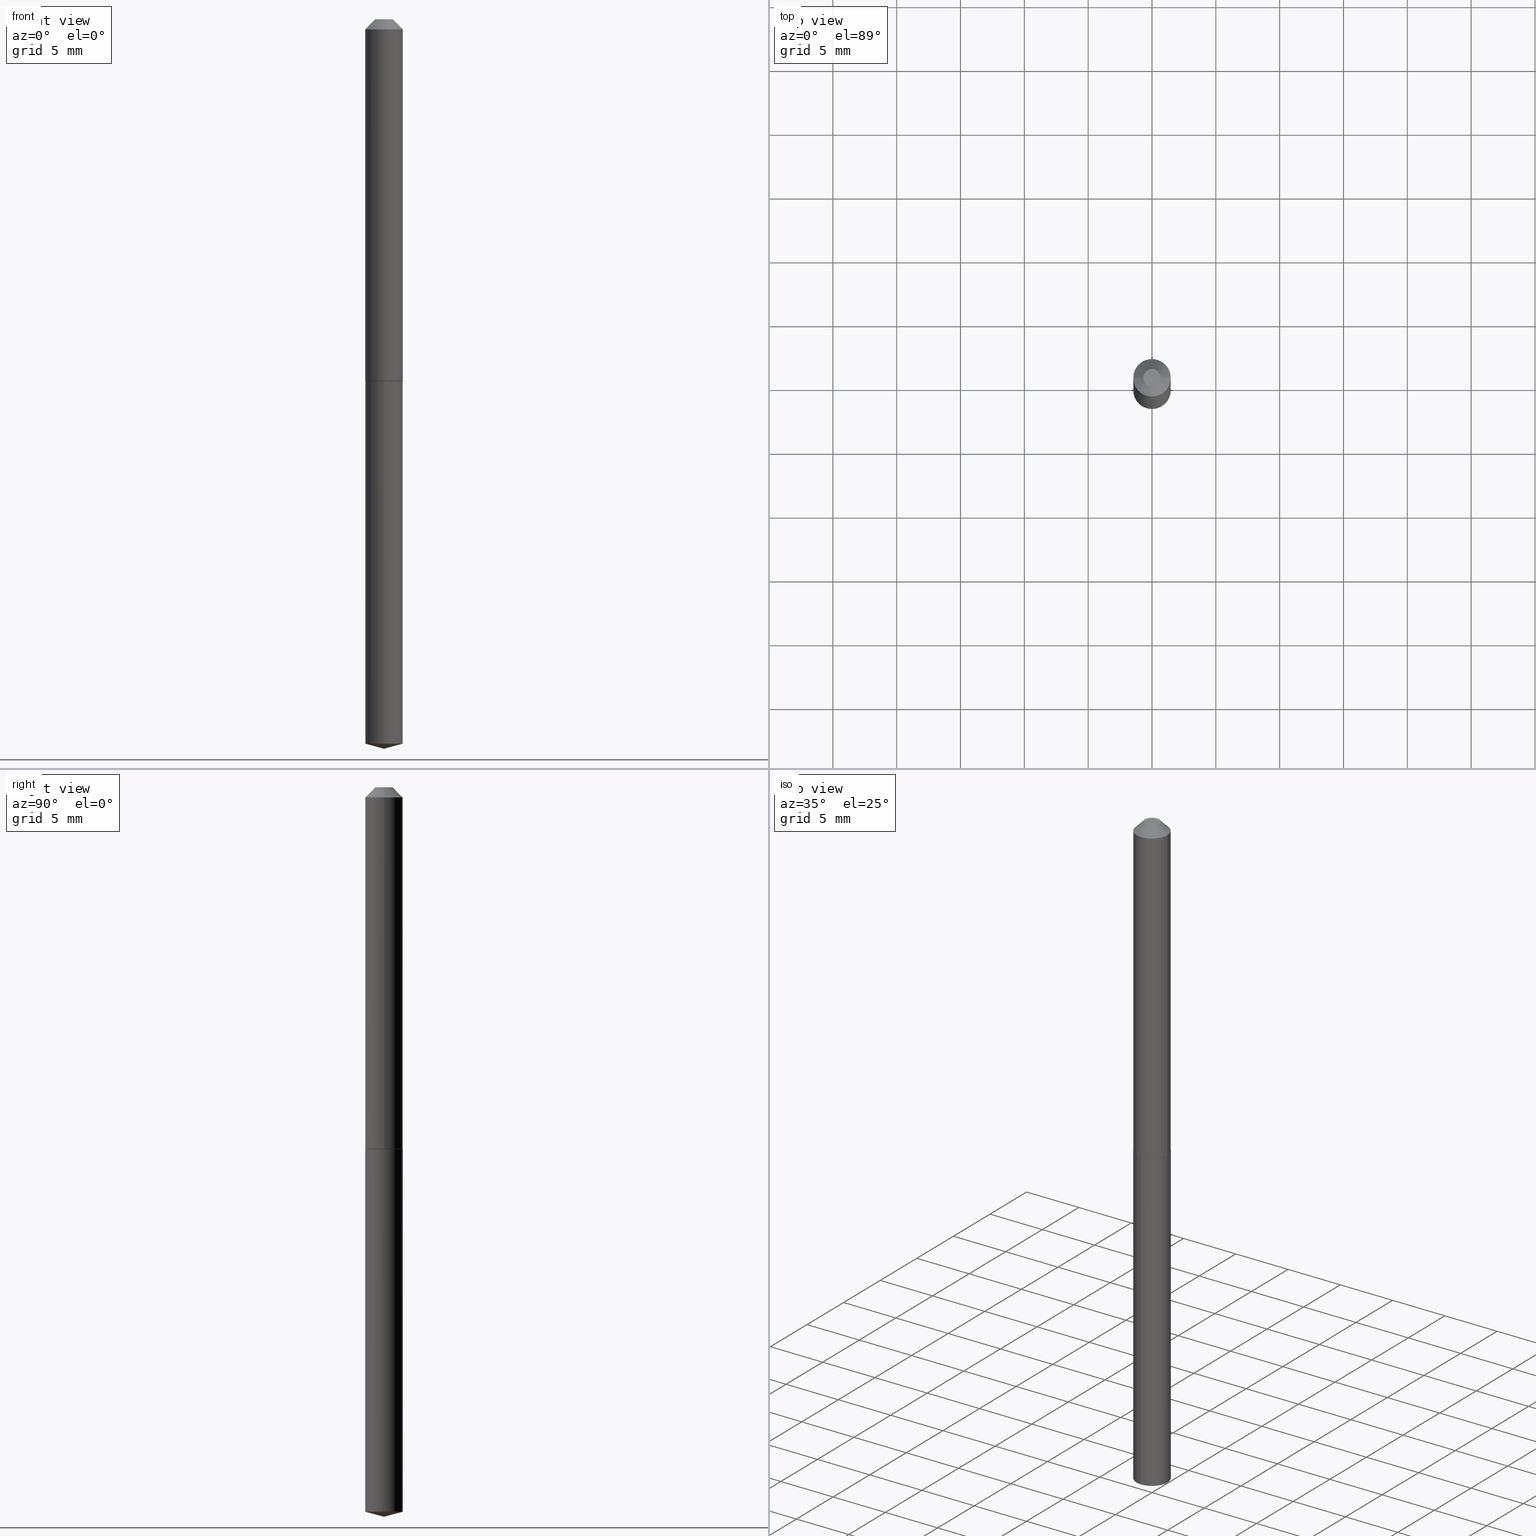
[diagram: canonical four-view strip — front | top / right | iso, engineering-drawing reading convention]
A machine part, canonical four-view strip (front | top / right | iso — engineering-drawing reading convention). The complete STEP part file that produces these views, byte-faithful:
ISO-10303-21;
HEADER;
FILE_DESCRIPTION (( 'STEP AP203' ),
    '1' );
FILE_NAME ('53032.STEP',
    '2024-04-22T19:03:08',
    ( '' ),
    ( '' ),
    'SwSTEP 2.0',
    'SolidWorks 2023',
    '' );
FILE_SCHEMA (( 'CONFIG_CONTROL_DESIGN' ));
ENDSEC;

DATA;
#1 = DIRECTION ( 'NONE',  ( -2.445468806185136597E-29, 3.491481338843145583E-15, 1.000000000000000000 ) ) ;
#2 = PERSON_AND_ORGANIZATION ( #383, #203 ) ;
#3 = EDGE_CURVE ( 'NONE', #154, #178, #134, .T. ) ;
#4 = VECTOR ( 'NONE', #122, 39.37007874015748143 ) ;
#5 = CC_DESIGN_APPROVAL ( #278, ( #338 ) ) ;
#6 = DIRECTION ( 'NONE',  ( -2.445478678420199374E-29, 3.491467201240642753E-15, 1.000000000000000000 ) ) ;
#7 = COORDINATED_UNIVERSAL_TIME_OFFSET ( 5, 0, .BEHIND. ) ;
#8 = ORIENTED_EDGE ( 'NONE', *, *, #63, .F. ) ;
#9 = DIRECTION ( 'NONE',  ( -2.445468806185136597E-29, 3.491481338843145583E-15, 1.000000000000000000 ) ) ;
#10 = FACE_OUTER_BOUND ( 'NONE', #204, .T. ) ;
#11 = CYLINDRICAL_SURFACE ( 'NONE', #81, 0.05800000000000000294 ) ;
#12 = MECHANICAL_CONTEXT ( 'NONE', #245, 'mechanical' ) ;
#13 = DIRECTION ( 'NONE',  ( -2.445468806185136597E-29, 3.491481338843145583E-15, 1.000000000000000000 ) ) ;
#14 = CONICAL_SURFACE ( 'NONE', #339, 0.05800000000000000294, 0.7853981633974449483 ) ;
#15 = CC_DESIGN_SECURITY_CLASSIFICATION ( #261, ( #40 ) ) ;
#16 = VERTEX_POINT ( 'NONE', #343 ) ;
#17 = APPROVAL_STATUS ( 'not_yet_approved' ) ;
#18 = PERSON_AND_ORGANIZATION ( #383, #203 ) ;
#19 = ORIENTED_EDGE ( 'NONE', *, *, #361, .F. ) ;
#20 = APPROVAL_ROLE ( '' ) ;
#21 = MANIFOLD_SOLID_BREP ( 'Body-Move/Copy2[2]', #329 ) ;
#22 = ADVANCED_BREP_SHAPE_REPRESENTATION ( '53032', ( #289, #21, #29 ), #75 ) ;
#23 = ORIENTED_EDGE ( 'NONE', *, *, #182, .T. ) ;
#24 = DIRECTION ( 'NONE',  ( -2.438088387897960049E-29, 3.491481338843145188E-15, 1.000000000000000000 ) ) ;
#25 = DIRECTION ( 'NONE',  ( -2.445468806185136877E-29, 3.491481338843145188E-15, 1.000000000000000000 ) ) ;
#26 = ORIENTED_EDGE ( 'NONE', *, *, #140, .T. ) ;
#27 = LOCAL_TIME ( 15, 3, 8.000000000000000000, #218 ) ;
#28 = CARTESIAN_POINT ( 'NONE',  ( -0.05800000000000000294, 2.959030434669544691E-16, -0.03125000000000020817 ) ) ;
#29 = AXIS2_PLACEMENT_3D ( 'NONE', #159, #36, #128 ) ;
#30 = DIRECTION ( 'NONE',  ( -0.7071067811864267805, 7.493145998869918709E-15, 0.7071067811866682540 ) ) ;
#31 = CARTESIAN_POINT ( 'NONE',  ( 0.05800000000000000294, -5.070176757095978650E-16, -0.03125000000000020817 ) ) ;
#32 = EDGE_LOOP ( 'NONE', ( #210, #60 ) ) ;
#33 = EDGE_CURVE ( 'NONE', #373, #16, #358, .T. ) ;
#34 = APPROVAL ( #17, 'UNSPECIFIED' ) ;
#35 = CARTESIAN_POINT ( 'NONE',  ( 2.729143187702613290E-29, -3.896493174148952160E-15, -1.116000000000000325 ) ) ;
#36 = DIRECTION ( 'NONE',  ( 0.000000000000000000, 0.000000000000000000, 1.000000000000000000 ) ) ;
#37 = CARTESIAN_POINT ( 'NONE',  ( 4.121147867408853444E-16, 0.05799999999999611022, -1.116000000000000325 ) ) ;
#38 = DIRECTION ( 'NONE',  ( -2.445468806185136597E-29, 3.491481338843145583E-15, 1.000000000000000000 ) ) ;
#39 = AXIS2_PLACEMENT_3D ( 'NONE', #115, #209, #326 ) ;
#40 = PRODUCT_DEFINITION_FORMATION_WITH_SPECIFIED_SOURCE ( 'ANY', '', #164, .NOT_KNOWN. ) ;
#41 = DIRECTION ( 'NONE',  ( -6.982962677686267499E-15, -1.000000000000000000, 3.510303681827565886E-15 ) ) ;
#42 = DIRECTION ( 'NONE',  ( -2.445468806185136597E-29, 3.491481338843145583E-15, 1.000000000000000000 ) ) ;
#43 = DIRECTION ( 'NONE',  ( 2.438088387897960049E-29, -3.491481338843145188E-15, -1.000000000000000000 ) ) ;
#44 = DIRECTION ( 'NONE',  ( -2.445468806185136597E-29, 3.491481338843145583E-15, 1.000000000000000000 ) ) ;
#45 = EDGE_CURVE ( 'NONE', #373, #327, #142, .T. ) ;
#46 = DIRECTION ( 'NONE',  ( 1.000000000000000000, -6.982962677686266711E-15, 0.000000000000000000 ) ) ;
#47 = CIRCLE ( 'NONE', #238, 0.05800000000000000294 ) ;
#48 = DIRECTION ( 'NONE',  ( -2.445468806185136877E-29, 3.491481338843145188E-15, 1.000000000000000000 ) ) ;
#49 = CARTESIAN_POINT ( 'NONE',  ( -0.05800000000000014172, -3.482632646738670605E-15, -1.115500000000000158 ) ) ;
#50 = PERSON_AND_ORGANIZATION_ROLE ( 'classification_officer' ) ;
#51 = ORIENTED_EDGE ( 'NONE', *, *, #369, .F. ) ;
#52 = EDGE_CURVE ( 'NONE', #154, #357, #299, .T. ) ;
#53 = CARTESIAN_POINT ( 'NONE',  ( 7.642090019328602662E-31, -1.091087918388490267E-16, -0.03125000000000020817 ) ) ;
#54 = ORIENTED_EDGE ( 'NONE', *, *, #314, .T. ) ;
#55 = VERTEX_POINT ( 'NONE', #216 ) ;
#56 = ORIENTED_EDGE ( 'NONE', *, *, #155, .T. ) ;
#57 = CLOSED_SHELL ( 'NONE', ( #247, #255, #150, #143, #259 ) ) ;
#58 = EDGE_LOOP ( 'NONE', ( #237, #54, #376, #303 ) ) ;
#59 = ADVANCED_FACE ( 'NONE', ( #68 ), #280, .T. ) ;
#60 = ORIENTED_EDGE ( 'NONE', *, *, #184, .F. ) ;
#61 = DIMENSIONAL_EXPONENTS ( 1.000000000000000000, 0.000000000000000000, 0.000000000000000000, 0.000000000000000000, 0.000000000000000000, 0.000000000000000000, 0.000000000000000000 ) ;
#62 = EDGE_LOOP ( 'NONE', ( #144, #114, #243, #360 ) ) ;
#63 = EDGE_CURVE ( 'NONE', #352, #55, #313, .T. ) ;
#64 = CALENDAR_DATE ( 2024, 22, 4 ) ;
#65 = DIRECTION ( 'NONE',  ( -6.982962677686265922E-15, -1.000000000000000000, 2.355041373848502747E-15 ) ) ;
#66 =( NAMED_UNIT ( * ) PLANE_ANGLE_UNIT ( ) SI_UNIT ( $, .RADIAN. ) );
#67 = APPLICATION_PROTOCOL_DEFINITION ( 'international standard', 'config_control_design', 1994, #333 ) ;
#68 = FACE_OUTER_BOUND ( 'NONE', #78, .T. ) ;
#69 = FACE_OUTER_BOUND ( 'NONE', #390, .T. ) ;
#70 = VECTOR ( 'NONE', #48, 39.37007874015748143 ) ;
#71 = DIRECTION ( 'NONE',  ( 1.000000000000000000, -6.982962677686266711E-15, 4.876176775795935793E-29 ) ) ;
#72 = CALENDAR_DATE ( 2024, 22, 4 ) ;
#73 = ORIENTED_EDGE ( 'NONE', *, *, #52, .F. ) ;
#74 = CIRCLE ( 'NONE', #348, 0.02675000000000000294 ) ;
#75 =( GEOMETRIC_REPRESENTATION_CONTEXT ( 3 ) GLOBAL_UNCERTAINTY_ASSIGNED_CONTEXT ( ( #291 ) ) GLOBAL_UNIT_ASSIGNED_CONTEXT ( ( #370, #66, #283 ) ) REPRESENTATION_CONTEXT ( 'NONE', 'WORKASPACE' ) );
#76 = EDGE_LOOP ( 'NONE', ( #109, #380, #51, #355 ) ) ;
#77 = CC_DESIGN_DATE_AND_TIME_ASSIGNMENT ( #153, #307, ( #338 ) ) ;
#78 = EDGE_LOOP ( 'NONE', ( #8, #86, #179, #19 ) ) ;
#79 = VERTEX_POINT ( 'NONE', #266 ) ;
#80 = CARTESIAN_POINT ( 'NONE',  ( 0.000000000000000000, 0.000000000000000000, 0.000000000000000000 ) ) ;
#81 = AXIS2_PLACEMENT_3D ( 'NONE', #117, #224, #335 ) ;
#82 = CONICAL_SURFACE ( 'NONE', #197, 0.05800000000000000294, 0.7853981633974449483 ) ;
#83 = VECTOR ( 'NONE', #317, 39.37007874015748143 ) ;
#84 = ORIENTED_EDGE ( 'NONE', *, *, #236, .T. ) ;
#85 = CARTESIAN_POINT ( 'NONE',  ( 5.989671091818642381E-48, -8.551662891793931527E-34, -2.449293598294701954E-19 ) ) ;
#86 = ORIENTED_EDGE ( 'NONE', *, *, #367, .T. ) ;
#87 = ORIENTED_EDGE ( 'NONE', *, *, #183, .F. ) ;
#88 = AXIS2_PLACEMENT_3D ( 'NONE', #257, #217, #41 ) ;
#89 = APPROVAL_PERSON_ORGANIZATION ( #2, #278, #258 ) ;
#90 = APPROVAL_ROLE ( '' ) ;
#91 = DIRECTION ( 'NONE',  ( 1.000000000000000000, -6.982962677686265922E-15, 4.876188278482911222E-29 ) ) ;
#92 = PERSON_AND_ORGANIZATION ( #383, #203 ) ;
#93 = CARTESIAN_POINT ( 'NONE',  ( -4.050118353057761076E-16, -0.05800000000000389566, -1.116000000000000103 ) ) ;
#94 = ADVANCED_FACE ( 'NONE', ( #200 ), #318, .F. ) ;
#95 = LENGTH_MEASURE_WITH_UNIT ( LENGTH_MEASURE( 0.02539999999999999897 ), #196 );
#96 = AXIS2_PLACEMENT_3D ( 'NONE', #315, #13, #256 ) ;
#97 = DIRECTION ( 'NONE',  ( 6.863315791527702148E-15, 0.9659258262890705327, 0.2588190451025121908 ) ) ;
#98 = FACE_OUTER_BOUND ( 'NONE', #76, .T. ) ;
#99 = CARTESIAN_POINT ( 'NONE',  ( 2.727920453299520488E-29, -3.894747433479529868E-15, -1.115500000000000158 ) ) ;
#100 = EDGE_CURVE ( 'NONE', #327, #373, #74, .T. ) ;
#101 = CARTESIAN_POINT ( 'NONE',  ( 7.642090019328602662E-31, -1.091087918388490267E-16, -0.03125000000000020817 ) ) ;
#102 = VECTOR ( 'NONE', #30, 39.37007874015748143 ) ;
#103 = PERSON_AND_ORGANIZATION_ROLE ( 'creator' ) ;
#104 = APPROVAL_DATE_TIME ( #172, #362 ) ;
#105 = ADVANCED_FACE ( 'NONE', ( #113 ), #229, .F. ) ;
#106 = ADVANCED_FACE ( 'NONE', ( #98 ), #118, .T. ) ;
#107 = CARTESIAN_POINT ( 'NONE',  ( 5.464310694885686227E-29, -7.801555902971454094E-15, -2.234458946838995264 ) ) ;
#108 = ORIENTED_EDGE ( 'NONE', *, *, #323, .F. ) ;
#109 = ORIENTED_EDGE ( 'NONE', *, *, #372, .T. ) ;
#110 = ORIENTED_EDGE ( 'NONE', *, *, #100, .T. ) ;
#111 = CYLINDRICAL_SURFACE ( 'NONE', #248, 0.05800000000000000294 ) ;
#112 = CIRCLE ( 'NONE', #294, 0.05800000000000000294 ) ;
#113 = FACE_OUTER_BOUND ( 'NONE', #281, .T. ) ;
#114 = ORIENTED_EDGE ( 'NONE', *, *, #33, .T. ) ;
#115 = CARTESIAN_POINT ( 'NONE',  ( -9.077637211774838360E-28, 1.296035216511655387E-13, 37.12007874015748143 ) ) ;
#116 = ADVANCED_FACE ( 'NONE', ( #286 ), #82, .T. ) ;
#117 = CARTESIAN_POINT ( 'NONE',  ( 2.729143187702612729E-29, -3.896493174148951371E-15, -1.116000000000000103 ) ) ;
#118 = CONICAL_SURFACE ( 'NONE', #96, 0.05800000000000014172, 0.7853981633972775267 ) ;
#119 = DIRECTION ( 'NONE',  ( 1.000000000000000000, -6.982962677686264344E-15, 0.000000000000000000 ) ) ;
#120 = APPROVAL_STATUS ( 'not_yet_approved' ) ;
#121 = APPROVAL_PERSON_ORGANIZATION ( #276, #34, #90 ) ;
#122 = DIRECTION ( 'NONE',  ( -2.445478678420199094E-29, 3.491467201240643148E-15, 1.000000000000000000 ) ) ;
#123 = ORIENTED_EDGE ( 'NONE', *, *, #45, .T. ) ;
#124 = DIRECTION ( 'NONE',  ( 0.7071067811864267805, -2.468850131080992517E-15, 0.7071067811866682540 ) ) ;
#125 = CYLINDRICAL_SURFACE ( 'NONE', #356, 0.05800000000000007233 ) ;
#126 = CARTESIAN_POINT ( 'NONE',  ( 5.502327219664885561E-29, -7.855801202791446786E-15, -2.250000000000000000 ) ) ;
#127 = FACE_OUTER_BOUND ( 'NONE', #386, .T. ) ;
#128 = DIRECTION ( 'NONE',  ( 1.000000000000000000, 0.000000000000000000, 0.000000000000000000 ) ) ;
#129 = CARTESIAN_POINT ( 'NONE',  ( -4.050118353057487440E-16, -0.05800000000000779532, -2.234458946838994819 ) ) ;
#130 = CALENDAR_DATE ( 2024, 22, 4 ) ;
#131 = CIRCLE ( 'NONE', #185, 0.05800000000000000294 ) ;
#132 = LOCAL_TIME ( 15, 3, 8.000000000000000000, #241 ) ;
#133 = ORIENTED_EDGE ( 'NONE', *, *, #367, .F. ) ;
#134 = LINE ( 'NONE', #126, #201 ) ;
#135 = CARTESIAN_POINT ( 'NONE',  ( 2.729143187702613290E-29, -3.896493174148952160E-15, -1.116000000000000325 ) ) ;
#136 = CC_DESIGN_DATE_AND_TIME_ASSIGNMENT ( #233, #346, ( #261 ) ) ;
#137 = CIRCLE ( 'NONE', #270, 0.05800000000000000294 ) ;
#138 = CIRCLE ( 'NONE', #240, 0.05800000000000000294 ) ;
#139 = AXIS2_PLACEMENT_3D ( 'NONE', #366, #336, #312 ) ;
#140 = EDGE_CURVE ( 'NONE', #175, #296, #384, .T. ) ;
#141 = CARTESIAN_POINT ( 'NONE',  ( 5.989671091818642381E-48, -8.551662891793931527E-34, -2.449293598294701954E-19 ) ) ;
#142 = CIRCLE ( 'NONE', #169, 0.02675000000000000294 ) ;
#143 = ADVANCED_FACE ( 'NONE', ( #173 ), #11, .T. ) ;
#144 = ORIENTED_EDGE ( 'NONE', *, *, #45, .F. ) ;
#145 = CARTESIAN_POINT ( 'NONE',  ( 5.502304991616788421E-29, -7.855832757920231325E-15, -2.250000000000000000 ) ) ;
#146 = DIRECTION ( 'NONE',  ( -6.745023994389847810E-15, -0.9659258262890687563, 0.2588190451025189631 ) ) ;
#147 = DIRECTION ( 'NONE',  ( -0.7071067811865451302, 2.468850131082231817E-15, -0.7071067811865499042 ) ) ;
#148 = AXIS2_PLACEMENT_3D ( 'NONE', #35, #1, #119 ) ;
#149 = CIRCLE ( 'NONE', #139, 0.05800000000000014172 ) ;
#150 = ADVANCED_FACE ( 'NONE', ( #195 ), #163, .T. ) ;
#151 = PERSON_AND_ORGANIZATION_ROLE ( 'design_owner' ) ;
#152 = CONICAL_SURFACE ( 'NONE', #388, 0.05800000000000014172, 0.7853981633972775267 ) ;
#153 = DATE_AND_TIME ( #342, #230 ) ;
#154 = VERTEX_POINT ( 'NONE', #187 ) ;
#155 = EDGE_CURVE ( 'NONE', #178, #175, #306, .T. ) ;
#156 = ORIENTED_EDGE ( 'NONE', *, *, #314, .F. ) ;
#157 = DESIGN_CONTEXT ( 'detailed design', #333, 'design' ) ;
#158 = DIRECTION ( 'NONE',  ( 1.000000000000000000, -6.982962677686265922E-15, 0.000000000000000000 ) ) ;
#159 = CARTESIAN_POINT ( 'NONE',  ( 0.000000000000000000, 0.000000000000000000, 0.000000000000000000 ) ) ;
#160 = DIRECTION ( 'NONE',  ( 1.000000000000000000, -6.982962677686266711E-15, 4.876176775795935793E-29 ) ) ;
#161 = CC_DESIGN_PERSON_AND_ORGANIZATION_ASSIGNMENT ( #92, #249, ( #338 ) ) ;
#162 = COORDINATED_UNIVERSAL_TIME_OFFSET ( 5, 0, .BEHIND. ) ;
#163 = CONICAL_SURFACE ( 'NONE', #88, 146.9311341562581390, 1.308996938995752535 ) ;
#164 = PRODUCT ( '53032', '53032', '', ( #12 ) ) ;
#165 = CARTESIAN_POINT ( 'NONE',  ( 2.994835545909321190E-48, -4.275831445896965764E-34, -1.224646799147350977E-19 ) ) ;
#166 = CARTESIAN_POINT ( 'NONE',  ( -0.05800000000000007233, 4.121147867408586217E-16, -2.852982352347848756E-30 ) ) ;
#167 = DIRECTION ( 'NONE',  ( -2.445478678420199374E-29, 3.491467201240642753E-15, 1.000000000000000000 ) ) ;
#168 = DIRECTION ( 'NONE',  ( -1.000000000000000000, 6.982962677686266711E-15, 0.000000000000000000 ) ) ;
#169 = AXIS2_PLACEMENT_3D ( 'NONE', #85, #332, #212 ) ;
#170 = PRODUCT_RELATED_PRODUCT_CATEGORY ( 'detail', '', ( #164 ) ) ;
#171 = ORIENTED_EDGE ( 'NONE', *, *, #52, .T. ) ;
#172 = DATE_AND_TIME ( #72, #132 ) ;
#173 = FACE_OUTER_BOUND ( 'NONE', #58, .T. ) ;
#174 = CC_DESIGN_PERSON_AND_ORGANIZATION_ASSIGNMENT ( #227, #151, ( #164 ) ) ;
#175 = VERTEX_POINT ( 'NONE', #368 ) ;
#176 = AXIS2_PLACEMENT_3D ( 'NONE', #381, #378, #295 ) ;
#177 = CARTESIAN_POINT ( 'NONE',  ( -0.05800000000000014172, -3.482632646738670605E-15, -1.115500000000000158 ) ) ;
#178 = VERTEX_POINT ( 'NONE', #220 ) ;
#179 = ORIENTED_EDGE ( 'NONE', *, *, #183, .T. ) ;
#180 = CARTESIAN_POINT ( 'NONE',  ( -0.05750000000000014128, -3.485281873912781806E-15, -1.116000000000000325 ) ) ;
#181 = ORIENTED_EDGE ( 'NONE', *, *, #3, .T. ) ;
#182 = EDGE_CURVE ( 'NONE', #327, #55, #337, .T. ) ;
#183 = EDGE_CURVE ( 'NONE', #269, #16, #234, .T. ) ;
#184 = EDGE_CURVE ( 'NONE', #300, #79, #301, .T. ) ;
#185 = AXIS2_PLACEMENT_3D ( 'NONE', #285, #167, #65 ) ;
#186 = ORIENTED_EDGE ( 'NONE', *, *, #207, .F. ) ;
#187 = CARTESIAN_POINT ( 'NONE',  ( 5.502327026445448872E-29, -7.855801202791446786E-15, -2.250000000000000000 ) ) ;
#188 = DATE_AND_TIME ( #64, #27 ) ;
#189 = VECTOR ( 'NONE', #146, 39.37007874015748854 ) ;
#190 = FACE_OUTER_BOUND ( 'NONE', #387, .T. ) ;
#191 = DIRECTION ( 'NONE',  ( -2.445468806185136597E-29, 3.491481338843145583E-15, 1.000000000000000000 ) ) ;
#192 = APPLICATION_PROTOCOL_DEFINITION ( 'international standard', 'config_control_design', 1994, #245 ) ;
#193 = CARTESIAN_POINT ( 'NONE',  ( 2.729143187702612729E-29, -3.896493174148951371E-15, -1.116000000000000103 ) ) ;
#194 = CC_DESIGN_PERSON_AND_ORGANIZATION_ASSIGNMENT ( #377, #103, ( #40 ) ) ;
#195 = FACE_OUTER_BOUND ( 'NONE', #353, .T. ) ;
#196 =( LENGTH_UNIT ( ) NAMED_UNIT ( * ) SI_UNIT ( $, .METRE. ) );
#197 = AXIS2_PLACEMENT_3D ( 'NONE', #101, #288, #168 ) ;
#198 = APPROVAL_DATE_TIME ( #188, #34 ) ;
#199 = PERSON_AND_ORGANIZATION_ROLE ( 'design_supplier' ) ;
#200 = FACE_OUTER_BOUND ( 'NONE', #32, .T. ) ;
#201 = VECTOR ( 'NONE', #97, 39.37007874015748854 ) ;
#202 = ORIENTED_EDGE ( 'NONE', *, *, #252, .F. ) ;
#203 = ORGANIZATION ( 'UNSPECIFIED', 'UNSPECIFIED', '' ) ;
#204 = EDGE_LOOP ( 'NONE', ( #244, #26 ) ) ;
#205 = DIRECTION ( 'NONE',  ( 1.000000000000000000, -6.982962677686265922E-15, 4.876176775795935793E-29 ) ) ;
#206 = CC_DESIGN_PERSON_AND_ORGANIZATION_ASSIGNMENT ( #316, #50, ( #261 ) ) ;
#207 = EDGE_CURVE ( 'NONE', #296, #175, #131, .T. ) ;
#208 = ORIENTED_EDGE ( 'NONE', *, *, #3, .F. ) ;
#209 = DIRECTION ( 'NONE',  ( -2.445478678420199374E-29, 3.491467201240642753E-15, 1.000000000000000000 ) ) ;
#210 = ORIENTED_EDGE ( 'NONE', *, *, #372, .F. ) ;
#211 = LINE ( 'NONE', #177, #102 ) ;
#212 = DIRECTION ( 'NONE',  ( 1.000000000000000000, -6.982962677686265922E-15, 4.876188278482911222E-29 ) ) ;
#213 = CONICAL_SURFACE ( 'NONE', #39, 146.9311341562581390, 1.308996938995752535 ) ;
#214 = CC_DESIGN_APPROVAL ( #34, ( #40 ) ) ;
#215 = DIRECTION ( 'NONE',  ( 0.7071067811865451302, -7.319954787623248157E-15, -0.7071067811865499042 ) ) ;
#216 = CARTESIAN_POINT ( 'NONE',  ( -0.05800000000000000294, -1.589813325918329827E-15, -0.03125000000000020817 ) ) ;
#217 = DIRECTION ( 'NONE',  ( -2.445478678420199374E-29, 3.491467201240642753E-15, 1.000000000000000000 ) ) ;
#218 = COORDINATED_UNIVERSAL_TIME_OFFSET ( 5, 0, .BEHIND. ) ;
#219 = ORIENTED_EDGE ( 'NONE', *, *, #184, .T. ) ;
#220 = CARTESIAN_POINT ( 'NONE',  ( 4.121147867409127080E-16, 0.05799999999999219669, -2.234458946838995708 ) ) ;
#221 = DIRECTION ( 'NONE',  ( 1.000000000000000000, -6.982962677686265922E-15, 0.000000000000000000 ) ) ;
#222 = DIRECTION ( 'NONE',  ( -2.445468806185136597E-29, 3.491481338843145583E-15, 1.000000000000000000 ) ) ;
#223 = PLANE ( 'NONE',  #308 ) ;
#224 = DIRECTION ( 'NONE',  ( -2.445478678420199374E-29, 3.491467201240642753E-15, 1.000000000000000000 ) ) ;
#225 = APPROVAL_DATE_TIME ( #254, #278 ) ;
#226 = ADVANCED_FACE ( 'NONE', ( #190 ), #152, .T. ) ;
#227 = PERSON_AND_ORGANIZATION ( #383, #203 ) ;
#228 = CARTESIAN_POINT ( 'NONE',  ( 7.642090019328602662E-31, -1.091087918388490267E-16, -0.03125000000000020817 ) ) ;
#229 = PLANE ( 'NONE',  #319 ) ;
#230 = LOCAL_TIME ( 15, 3, 8.000000000000000000, #162 ) ;
#231 = ORIENTED_EDGE ( 'NONE', *, *, #63, .T. ) ;
#232 = ADVANCED_FACE ( 'NONE', ( #127 ), #14, .T. ) ;
#233 = DATE_AND_TIME ( #293, #359 ) ;
#234 = LINE ( 'NONE', #322, #292 ) ;
#235 = SECURITY_CLASSIFICATION_LEVEL ( 'unclassified' ) ;
#236 = EDGE_CURVE ( 'NONE', #357, #178, #47, .T. ) ;
#237 = ORIENTED_EDGE ( 'NONE', *, *, #155, .F. ) ;
#238 = AXIS2_PLACEMENT_3D ( 'NONE', #107, #239, #304 ) ;
#239 = DIRECTION ( 'NONE',  ( -2.445478678420199374E-29, 3.491467201240642753E-15, 1.000000000000000000 ) ) ;
#240 = AXIS2_PLACEMENT_3D ( 'NONE', #374, #191, #46 ) ;
#241 = COORDINATED_UNIVERSAL_TIME_OFFSET ( 5, 0, .BEHIND. ) ;
#242 = EDGE_LOOP ( 'NONE', ( #73, #181, #363 ) ) ;
#243 = ORIENTED_EDGE ( 'NONE', *, *, #385, .T. ) ;
#244 = ORIENTED_EDGE ( 'NONE', *, *, #207, .T. ) ;
#245 = APPLICATION_CONTEXT ( 'configuration controlled 3d designs of mechanical parts and assemblies' ) ;
#246 = CARTESIAN_POINT ( 'NONE',  ( 5.464310694885686227E-29, -7.801555902971454094E-15, -2.234458946838995264 ) ) ;
#247 = ADVANCED_FACE ( 'NONE', ( #274 ), #111, .T. ) ;
#248 = AXIS2_PLACEMENT_3D ( 'NONE', #331, #365, #350 ) ;
#249 = PERSON_AND_ORGANIZATION_ROLE ( 'creator' ) ;
#250 = LINE ( 'NONE', #93, #83 ) ;
#251 = VECTOR ( 'NONE', #215, 39.37007874015748143 ) ;
#252 = EDGE_CURVE ( 'NONE', #300, #352, #211, .T. ) ;
#253 = VECTOR ( 'NONE', #124, 39.37007874015748143 ) ;
#254 = DATE_AND_TIME ( #130, #345 ) ;
#255 = ADVANCED_FACE ( 'NONE', ( #273 ), #213, .T. ) ;
#256 = DIRECTION ( 'NONE',  ( 1.000000000000000000, -6.982962677686265922E-15, 0.000000000000000000 ) ) ;
#257 = CARTESIAN_POINT ( 'NONE',  ( -9.077637211774838360E-28, 1.296035216511655387E-13, 37.12007874015748143 ) ) ;
#258 = APPROVAL_ROLE ( '' ) ;
#259 = ADVANCED_FACE ( 'NONE', ( #10 ), #223, .F. ) ;
#260 = APPROVAL_STATUS ( 'not_yet_approved' ) ;
#261 = SECURITY_CLASSIFICATION ( '', '', #235 ) ;
#262 = COORDINATED_UNIVERSAL_TIME_OFFSET ( 5, 0, .BEHIND. ) ;
#263 = CARTESIAN_POINT ( 'NONE',  ( 8.779036989851792376E-30, -6.547573488000527292E-15, -1.116000000000000325 ) ) ;
#264 = ORIENTED_EDGE ( 'NONE', *, *, #33, .F. ) ;
#265 = DIRECTION ( 'NONE',  ( 2.445468806185136597E-29, -3.491481338843145583E-15, -1.000000000000000000 ) ) ;
#266 = CARTESIAN_POINT ( 'NONE',  ( 0.05750000000000014128, -4.298013528115912969E-15, -1.116000000000000325 ) ) ;
#267 = CARTESIAN_POINT ( 'NONE',  ( -0.02675000000000000294, 2.413486475475311021E-16, -2.449293598309669800E-19 ) ) ;
#268 = SHAPE_DEFINITION_REPRESENTATION ( #340, #22 ) ;
#269 = VERTEX_POINT ( 'NONE', #277 ) ;
#270 = AXIS2_PLACEMENT_3D ( 'NONE', #246, #6, #305 ) ;
#271 = ORIENTED_EDGE ( 'NONE', *, *, #361, .T. ) ;
#272 = VECTOR ( 'NONE', #147, 39.37007874015748143 ) ;
#273 = FACE_OUTER_BOUND ( 'NONE', #242, .T. ) ;
#274 = FACE_OUTER_BOUND ( 'NONE', #328, .T. ) ;
#275 = DIRECTION ( 'NONE',  ( -2.445468806185136597E-29, 3.491481338843145583E-15, 1.000000000000000000 ) ) ;
#276 = PERSON_AND_ORGANIZATION ( #383, #203 ) ;
#277 = CARTESIAN_POINT ( 'NONE',  ( 0.05800000000000014172, -4.299759268785333684E-15, -1.115500000000000158 ) ) ;
#278 = APPROVAL ( #120, 'UNSPECIFIED' ) ;
#279 = LINE ( 'NONE', #371, #253 ) ;
#280 = CYLINDRICAL_SURFACE ( 'NONE', #282, 0.05800000000000007233 ) ;
#281 = EDGE_LOOP ( 'NONE', ( #110, #123 ) ) ;
#282 = AXIS2_PLACEMENT_3D ( 'NONE', #310, #44, #71 ) ;
#283 =( NAMED_UNIT ( * ) SI_UNIT ( $, .STERADIAN. ) SOLID_ANGLE_UNIT ( ) );
#284 = DIRECTION ( 'NONE',  ( -1.000000000000000000, 6.982962677686265922E-15, -4.876176775795935793E-29 ) ) ;
#285 = CARTESIAN_POINT ( 'NONE',  ( 2.729143187702612729E-29, -3.896493174148951371E-15, -1.116000000000000103 ) ) ;
#286 = FACE_OUTER_BOUND ( 'NONE', #62, .T. ) ;
#287 = PERSON_AND_ORGANIZATION ( #383, #203 ) ;
#288 = DIRECTION ( 'NONE',  ( 2.445468806185136597E-29, -3.491481338843145583E-15, -1.000000000000000000 ) ) ;
#289 = MANIFOLD_SOLID_BREP ( 'Body-Move/Copy2[1]', #57 ) ;
#290 = DIRECTION ( 'NONE',  ( 6.982962677686265922E-15, 1.000000000000000000, -3.491467201240643148E-15 ) ) ;
#291 = UNCERTAINTY_MEASURE_WITH_UNIT (LENGTH_MEASURE( 1.000000000000000082E-05 ), #370, 'distance_accuracy_value', 'NONE');
#292 = VECTOR ( 'NONE', #25, 39.37007874015748143 ) ;
#293 = CALENDAR_DATE ( 2024, 22, 4 ) ;
#294 = AXIS2_PLACEMENT_3D ( 'NONE', #53, #275, #347 ) ;
#295 = DIRECTION ( 'NONE',  ( -6.982962677686265922E-15, -1.000000000000000000, 2.355041373848502747E-15 ) ) ;
#296 = VERTEX_POINT ( 'NONE', #341 ) ;
#297 = CIRCLE ( 'NONE', #389, 0.05750000000000014128 ) ;
#298 = ADVANCED_FACE ( 'NONE', ( #69 ), #125, .T. ) ;
#299 = LINE ( 'NONE', #145, #189 ) ;
#300 = VERTEX_POINT ( 'NONE', #180 ) ;
#301 = CIRCLE ( 'NONE', #148, 0.05750000000000014128 ) ;
#302 = CIRCLE ( 'NONE', #320, 0.05800000000000014172 ) ;
#303 = ORIENTED_EDGE ( 'NONE', *, *, #140, .F. ) ;
#304 = DIRECTION ( 'NONE',  ( -6.982962677686265922E-15, -1.000000000000000000, 4.710082747697005495E-15 ) ) ;
#305 = DIRECTION ( 'NONE',  ( -6.982962677686265922E-15, -1.000000000000000000, 4.710082747697005495E-15 ) ) ;
#306 = LINE ( 'NONE', #37, #4 ) ;
#307 = DATE_TIME_ROLE ( 'creation_date' ) ;
#308 = AXIS2_PLACEMENT_3D ( 'NONE', #193, #321, #290 ) ;
#309 = CARTESIAN_POINT ( 'NONE',  ( 2.727920453299520488E-29, -3.894747433479529868E-15, -1.115500000000000158 ) ) ;
#310 = CARTESIAN_POINT ( 'NONE',  ( 0.000000000000000000, 0.000000000000000000, 0.000000000000000000 ) ) ;
#311 = DIRECTION ( 'NONE',  ( 1.000000000000000000, -6.982962677686264344E-15, 0.000000000000000000 ) ) ;
#312 = DIRECTION ( 'NONE',  ( 1.000000000000000000, -6.982962677686265922E-15, 0.000000000000000000 ) ) ;
#313 = LINE ( 'NONE', #166, #70 ) ;
#314 = EDGE_CURVE ( 'NONE', #178, #357, #137, .T. ) ;
#315 = CARTESIAN_POINT ( 'NONE',  ( 2.727920453299520488E-29, -3.894747433479529868E-15, -1.115500000000000158 ) ) ;
#316 = PERSON_AND_ORGANIZATION ( #383, #203 ) ;
#317 = DIRECTION ( 'NONE',  ( -2.445478678420199094E-29, 3.491467201240643148E-15, 1.000000000000000000 ) ) ;
#318 = PLANE ( 'NONE',  #364 ) ;
#319 = AXIS2_PLACEMENT_3D ( 'NONE', #165, #43, #284 ) ;
#320 = AXIS2_PLACEMENT_3D ( 'NONE', #99, #9, #221 ) ;
#321 = DIRECTION ( 'NONE',  ( 2.445478678420198814E-29, -3.491467201240643148E-15, -1.000000000000000000 ) ) ;
#322 = CARTESIAN_POINT ( 'NONE',  ( 0.05800000000000007233, -4.050118353058039642E-16, 2.828182529961646347E-30 ) ) ;
#323 = EDGE_CURVE ( 'NONE', #357, #296, #250, .T. ) ;
#324 = ORIENTED_EDGE ( 'NONE', *, *, #385, .F. ) ;
#325 = ORIENTED_EDGE ( 'NONE', *, *, #369, .T. ) ;
#326 = DIRECTION ( 'NONE',  ( -6.982962677686267499E-15, -1.000000000000000000, 3.510303681827565886E-15 ) ) ;
#327 = VERTEX_POINT ( 'NONE', #267 ) ;
#328 = EDGE_LOOP ( 'NONE', ( #84, #56, #186, #108 ) ) ;
#329 = CLOSED_SHELL ( 'NONE', ( #116, #298, #106, #94, #226, #59, #232, #105 ) ) ;
#330 = APPROVAL_PERSON_ORGANIZATION ( #18, #362, #20 ) ;
#331 = CARTESIAN_POINT ( 'NONE',  ( 2.729143187702612729E-29, -3.896493174148951371E-15, -1.116000000000000103 ) ) ;
#332 = DIRECTION ( 'NONE',  ( -2.445468806185136597E-29, 3.491481338843145583E-15, 1.000000000000000000 ) ) ;
#333 = APPLICATION_CONTEXT ( 'configuration controlled 3d designs of mechanical parts and assemblies' ) ;
#334 = DIRECTION ( 'NONE',  ( -2.445468806185136597E-29, 3.491481338843145583E-15, 1.000000000000000000 ) ) ;
#335 = DIRECTION ( 'NONE',  ( -6.982962677686265922E-15, -1.000000000000000000, 2.355041373848502747E-15 ) ) ;
#336 = DIRECTION ( 'NONE',  ( -2.445468806185136597E-29, 3.491481338843145583E-15, 1.000000000000000000 ) ) ;
#337 = LINE ( 'NONE', #28, #272 ) ;
#338 = PRODUCT_DEFINITION ( 'UNKNOWN', '', #40, #157 ) ;
#339 = AXIS2_PLACEMENT_3D ( 'NONE', #228, #265, #375 ) ;
#340 = PRODUCT_DEFINITION_SHAPE ( 'NONE', 'NONE',  #338 ) ;
#341 = CARTESIAN_POINT ( 'NONE',  ( -4.050118353057761076E-16, -0.05800000000000389566, -1.116000000000000103 ) ) ;
#342 = CALENDAR_DATE ( 2024, 22, 4 ) ;
#343 = CARTESIAN_POINT ( 'NONE',  ( 0.05800000000000000294, -5.141206271446525225E-16, -0.03125000000000020817 ) ) ;
#344 = CARTESIAN_POINT ( 'NONE',  ( 0.02675000000000000294, -3.452679985749932326E-16, -2.449293598276105174E-19 ) ) ;
#345 = LOCAL_TIME ( 15, 3, 8.000000000000000000, #7 ) ;
#346 = DATE_TIME_ROLE ( 'classification_date' ) ;
#347 = DIRECTION ( 'NONE',  ( 1.000000000000000000, -6.982962677686266711E-15, 0.000000000000000000 ) ) ;
#348 = AXIS2_PLACEMENT_3D ( 'NONE', #141, #334, #91 ) ;
#349 = CC_DESIGN_APPROVAL ( #362, ( #261 ) ) ;
#350 = DIRECTION ( 'NONE',  ( -6.982962677686265922E-15, -1.000000000000000000, 2.355041373848502747E-15 ) ) ;
#351 = ORIENTED_EDGE ( 'NONE', *, *, #100, .F. ) ;
#352 = VERTEX_POINT ( 'NONE', #49 ) ;
#353 = EDGE_LOOP ( 'NONE', ( #208, #171, #156 ) ) ;
#354 = CC_DESIGN_PERSON_AND_ORGANIZATION_ASSIGNMENT ( #287, #199, ( #40 ) ) ;
#355 = ORIENTED_EDGE ( 'NONE', *, *, #382, .F. ) ;
#356 = AXIS2_PLACEMENT_3D ( 'NONE', #80, #222, #160 ) ;
#357 = VERTEX_POINT ( 'NONE', #129 ) ;
#358 = LINE ( 'NONE', #31, #251 ) ;
#359 = LOCAL_TIME ( 15, 3, 8.000000000000000000, #262 ) ;
#360 = ORIENTED_EDGE ( 'NONE', *, *, #182, .F. ) ;
#361 = EDGE_CURVE ( 'NONE', #55, #16, #112, .T. ) ;
#362 = APPROVAL ( #260, 'UNSPECIFIED' ) ;
#363 = ORIENTED_EDGE ( 'NONE', *, *, #236, .F. ) ;
#364 = AXIS2_PLACEMENT_3D ( 'NONE', #263, #24, #205 ) ;
#365 = DIRECTION ( 'NONE',  ( -2.445478678420199374E-29, 3.491467201240642753E-15, 1.000000000000000000 ) ) ;
#366 = CARTESIAN_POINT ( 'NONE',  ( 2.727920453299520488E-29, -3.894747433479529868E-15, -1.115500000000000158 ) ) ;
#367 = EDGE_CURVE ( 'NONE', #352, #269, #302, .T. ) ;
#368 = CARTESIAN_POINT ( 'NONE',  ( 4.121147867409129052E-16, 0.05799999999999611022, -1.116000000000000325 ) ) ;
#369 = EDGE_CURVE ( 'NONE', #269, #352, #149, .T. ) ;
#370 =( CONVERSION_BASED_UNIT ( 'INCH', #95 ) LENGTH_UNIT ( ) NAMED_UNIT ( #61 ) );
#371 = CARTESIAN_POINT ( 'NONE',  ( 0.05800000000000014172, -4.299759268785333684E-15, -1.115500000000000158 ) ) ;
#372 = EDGE_CURVE ( 'NONE', #79, #300, #297, .T. ) ;
#373 = VERTEX_POINT ( 'NONE', #344 ) ;
#374 = CARTESIAN_POINT ( 'NONE',  ( 7.642090019328602662E-31, -1.091087918388490267E-16, -0.03125000000000020817 ) ) ;
#375 = DIRECTION ( 'NONE',  ( -1.000000000000000000, 6.982962677686266711E-15, 0.000000000000000000 ) ) ;
#376 = ORIENTED_EDGE ( 'NONE', *, *, #323, .T. ) ;
#377 = PERSON_AND_ORGANIZATION ( #383, #203 ) ;
#378 = DIRECTION ( 'NONE',  ( -2.445478678420199374E-29, 3.491467201240642753E-15, 1.000000000000000000 ) ) ;
#379 = ORIENTED_EDGE ( 'NONE', *, *, #382, .T. ) ;
#380 = ORIENTED_EDGE ( 'NONE', *, *, #252, .T. ) ;
#381 = CARTESIAN_POINT ( 'NONE',  ( 2.729143187702612729E-29, -3.896493174148951371E-15, -1.116000000000000103 ) ) ;
#382 = EDGE_CURVE ( 'NONE', #79, #269, #279, .T. ) ;
#383 = PERSON ( 'UNSPECIFIED', 'UNSPECIFIED', 'UNSPECIFIED', ('UNSPECIFIED'), ('UNSPECIFIED'), ('UNSPECIFIED') ) ;
#384 = CIRCLE ( 'NONE', #176, 0.05800000000000000294 ) ;
#385 = EDGE_CURVE ( 'NONE', #16, #55, #138, .T. ) ;
#386 = EDGE_LOOP ( 'NONE', ( #264, #351, #23, #271 ) ) ;
#387 = EDGE_LOOP ( 'NONE', ( #202, #219, #379, #133 ) ) ;
#388 = AXIS2_PLACEMENT_3D ( 'NONE', #309, #42, #158 ) ;
#389 = AXIS2_PLACEMENT_3D ( 'NONE', #135, #38, #311 ) ;
#390 = EDGE_LOOP ( 'NONE', ( #325, #231, #324, #87 ) ) ;
ENDSEC;
END-ISO-10303-21;
